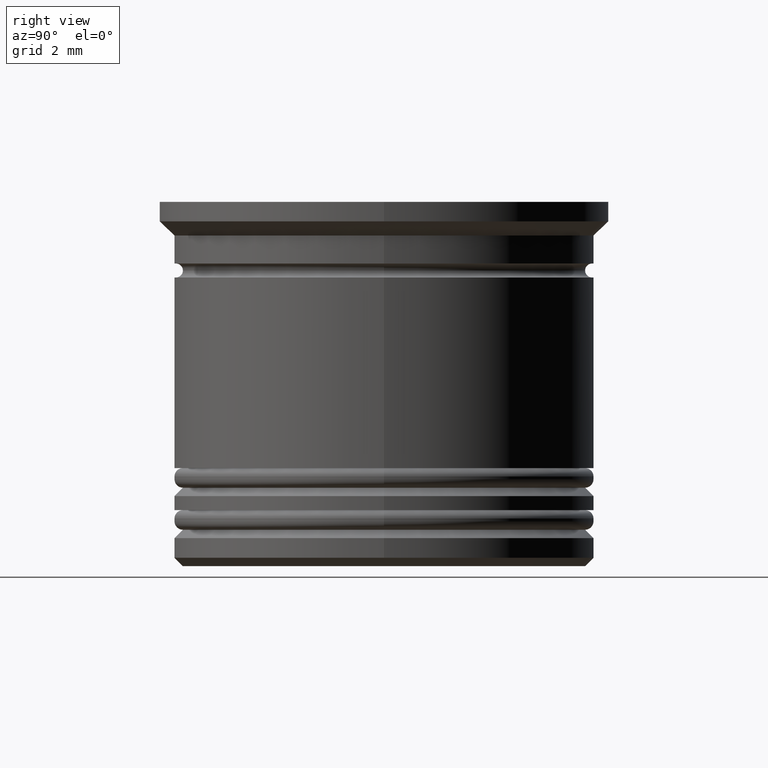
[diagram: clean part render]
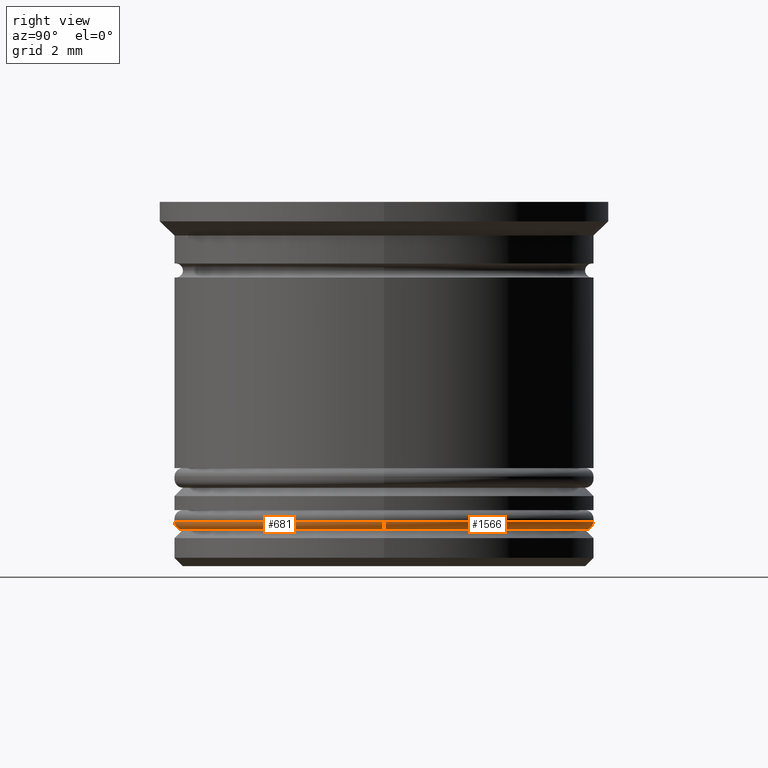
[diagram: same view with one multi-face feature highlighted, each face labeled with its STEP entity id]
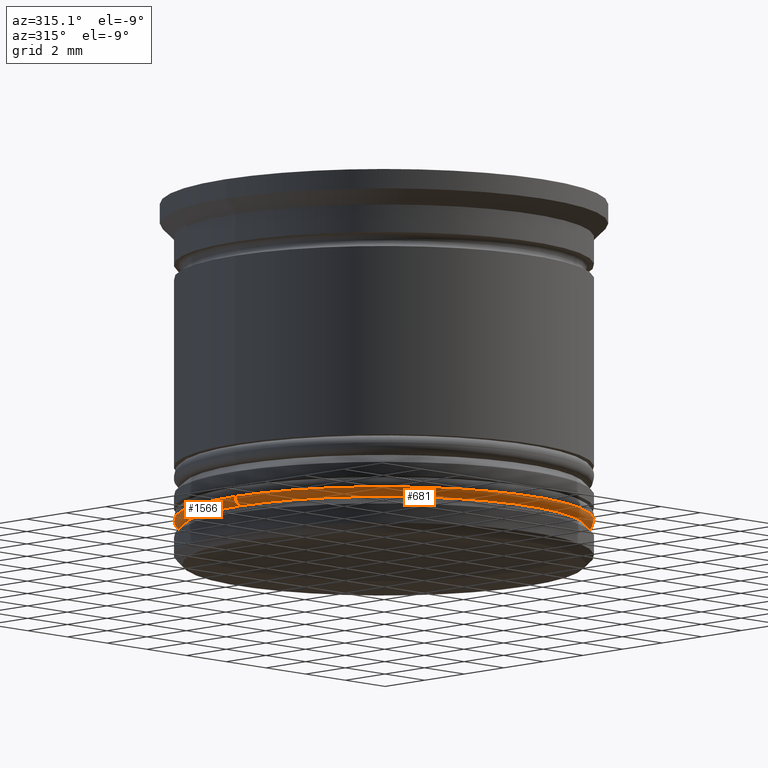
[diagram: same view with one multi-face feature highlighted, each face labeled with its STEP entity id]
A machine part, right view. The highlighted faces form ONE feature: a constant-radius fillet chain: 2 tangent blend faces with common blend radius 0.3 mm. The faces share edges in the B-rep.
A second angle (auxiliary view) of the same feature is appended — it is thin or edge-on in the first view.
Their STEP definitions:
[1] entity #1566 (Torus):
#1 = DIRECTION ( 'NONE',  ( 1.224646799147353207E-16, 1.000000000000000000, -0.000000000000000000 ) ) ;
#10 = DIRECTION ( 'NONE',  ( 0.000000000000000000, 0.000000000000000000, 1.000000000000000000 ) ) ;
#50 = CARTESIAN_POINT ( 'NONE',  ( 7.200000000000001954, 0.000000000000000000, -11.40000000000000391 ) ) ;
#99 = AXIS2_PLACEMENT_3D ( 'NONE', #263, #1966, #1518 ) ;
#146 = CIRCLE ( 'NONE', #859, 7.500000000000001776 ) ;
#147 = FACE_OUTER_BOUND ( 'NONE', #1721, .T. ) ;
#193 = CARTESIAN_POINT ( 'NONE',  ( 7.500000000000001776, 0.000000000000000000, -11.40000000000000391 ) ) ;
#219 = TOROIDAL_SURFACE ( 'NONE', #1536, 7.200000000000001954, 0.2999999999999999889 ) ;
#241 = ORIENTED_EDGE ( 'NONE', *, *, #1321, .F. ) ;
#262 = VERTEX_POINT ( 'NONE', #1110 ) ;
#263 = CARTESIAN_POINT ( 'NONE',  ( 0.000000000000000000, 0.000000000000000000, -11.70000000000000462 ) ) ;
#297 = CARTESIAN_POINT ( 'NONE',  ( 0.000000000000000000, 0.000000000000000000, -11.40000000000000391 ) ) ;
#322 = CARTESIAN_POINT ( 'NONE',  ( -7.200000000000001954, 8.817456953860946247E-16, -11.40000000000000391 ) ) ;
#566 = VERTEX_POINT ( 'NONE', #1264 ) ;
#601 = EDGE_CURVE ( 'NONE', #1976, #262, #146, .T. ) ;
#627 = DIRECTION ( 'NONE',  ( 1.000000000000000000, 0.000000000000000000, 0.000000000000000000 ) ) ;
#666 = DIRECTION ( 'NONE',  ( 0.000000000000000000, -1.000000000000000000, 0.000000000000000000 ) ) ;
#710 = CARTESIAN_POINT ( 'NONE',  ( 0.000000000000000000, 0.000000000000000000, -11.40000000000000391 ) ) ;
#720 = ORIENTED_EDGE ( 'NONE', *, *, #1866, .T. ) ;
#847 = DIRECTION ( 'NONE',  ( 0.000000000000000000, 0.000000000000000000, 1.000000000000000000 ) ) ;
#859 = AXIS2_PLACEMENT_3D ( 'NONE', #297, #10, #627 ) ;
#921 = CIRCLE ( 'NONE', #99, 7.200000000000001954 ) ;
#977 = EDGE_CURVE ( 'NONE', #1258, #1976, #1207, .T. ) ;
#1110 = CARTESIAN_POINT ( 'NONE',  ( -7.500000000000001776, 9.184850993605149917E-16, -11.40000000000000391 ) ) ;
#1207 = CIRCLE ( 'NONE', #1828, 0.2999999999999999334 ) ;
#1258 = VERTEX_POINT ( 'NONE', #1294 ) ;
#1264 = CARTESIAN_POINT ( 'NONE',  ( -7.200000000000001954, 9.001153973733047589E-16, -11.70000000000000462 ) ) ;
#1265 = DIRECTION ( 'NONE',  ( 0.000000000000000000, 0.000000000000000000, -1.000000000000000000 ) ) ;
#1294 = CARTESIAN_POINT ( 'NONE',  ( 7.200000000000001954, 0.000000000000000000, -11.70000000000000462 ) ) ;
#1321 = EDGE_CURVE ( 'NONE', #566, #1258, #921, .T. ) ;
#1479 = CIRCLE ( 'NONE', #1505, 0.2999999999999999334 ) ;
#1505 = AXIS2_PLACEMENT_3D ( 'NONE', #322, #1, #1843 ) ;
#1518 = DIRECTION ( 'NONE',  ( 1.000000000000000000, 0.000000000000000000, 0.000000000000000000 ) ) ;
#1536 = AXIS2_PLACEMENT_3D ( 'NONE', #710, #847, #1617 ) ;
#1566 = ADVANCED_FACE ( 'NONE', ( #147 ), #219, .T. ) ;
#1617 = DIRECTION ( 'NONE',  ( 1.000000000000000000, 0.000000000000000000, 0.000000000000000000 ) ) ;
#1707 = ORIENTED_EDGE ( 'NONE', *, *, #977, .F. ) ;
#1721 = EDGE_LOOP ( 'NONE', ( #241, #720, #1771, #1707 ) ) ;
#1771 = ORIENTED_EDGE ( 'NONE', *, *, #601, .F. ) ;
#1828 = AXIS2_PLACEMENT_3D ( 'NONE', #50, #666, #1265 ) ;
#1843 = DIRECTION ( 'NONE',  ( -1.000000000000000000, 1.224646799147353207E-16, 0.000000000000000000 ) ) ;
#1866 = EDGE_CURVE ( 'NONE', #566, #262, #1479, .T. ) ;
#1966 = DIRECTION ( 'NONE',  ( -0.000000000000000000, -0.000000000000000000, -1.000000000000000000 ) ) ;
#1976 = VERTEX_POINT ( 'NONE', #193 ) ;
[2] entity #681 (Torus):
#1 = DIRECTION ( 'NONE',  ( 1.224646799147353207E-16, 1.000000000000000000, -0.000000000000000000 ) ) ;
#36 = FACE_OUTER_BOUND ( 'NONE', #598, .T. ) ;
#50 = CARTESIAN_POINT ( 'NONE',  ( 7.200000000000001954, 0.000000000000000000, -11.40000000000000391 ) ) ;
#110 = CARTESIAN_POINT ( 'NONE',  ( 0.000000000000000000, 0.000000000000000000, -11.70000000000000462 ) ) ;
#193 = CARTESIAN_POINT ( 'NONE',  ( 7.500000000000001776, 0.000000000000000000, -11.40000000000000391 ) ) ;
#236 = ORIENTED_EDGE ( 'NONE', *, *, #1866, .F. ) ;
#262 = VERTEX_POINT ( 'NONE', #1110 ) ;
#308 = CIRCLE ( 'NONE', #1187, 7.200000000000001954 ) ;
#322 = CARTESIAN_POINT ( 'NONE',  ( -7.200000000000001954, 8.817456953860946247E-16, -11.40000000000000391 ) ) ;
#356 = ORIENTED_EDGE ( 'NONE', *, *, #1758, .F. ) ;
#457 = CARTESIAN_POINT ( 'NONE',  ( 0.000000000000000000, 0.000000000000000000, -11.40000000000000391 ) ) ;
#499 = DIRECTION ( 'NONE',  ( 0.000000000000000000, 0.000000000000000000, 1.000000000000000000 ) ) ;
#510 = CIRCLE ( 'NONE', #717, 7.500000000000001776 ) ;
#566 = VERTEX_POINT ( 'NONE', #1264 ) ;
#598 = EDGE_LOOP ( 'NONE', ( #236, #356, #807, #1854 ) ) ;
#666 = DIRECTION ( 'NONE',  ( 0.000000000000000000, -1.000000000000000000, 0.000000000000000000 ) ) ;
#681 = ADVANCED_FACE ( 'NONE', ( #36 ), #885, .T. ) ;
#717 = AXIS2_PLACEMENT_3D ( 'NONE', #970, #499, #1112 ) ;
#807 = ORIENTED_EDGE ( 'NONE', *, *, #977, .T. ) ;
#885 = TOROIDAL_SURFACE ( 'NONE', #1570, 7.200000000000001954, 0.2999999999999999889 ) ;
#970 = CARTESIAN_POINT ( 'NONE',  ( 0.000000000000000000, 0.000000000000000000, -11.40000000000000391 ) ) ;
#977 = EDGE_CURVE ( 'NONE', #1258, #1976, #1207, .T. ) ;
#999 = EDGE_CURVE ( 'NONE', #262, #1976, #510, .T. ) ;
#1027 = DIRECTION ( 'NONE',  ( 1.000000000000000000, 0.000000000000000000, 0.000000000000000000 ) ) ;
#1066 = DIRECTION ( 'NONE',  ( 0.000000000000000000, 0.000000000000000000, 1.000000000000000000 ) ) ;
#1110 = CARTESIAN_POINT ( 'NONE',  ( -7.500000000000001776, 9.184850993605149917E-16, -11.40000000000000391 ) ) ;
#1112 = DIRECTION ( 'NONE',  ( 1.000000000000000000, 0.000000000000000000, 0.000000000000000000 ) ) ;
#1167 = DIRECTION ( 'NONE',  ( -0.000000000000000000, -0.000000000000000000, -1.000000000000000000 ) ) ;
#1187 = AXIS2_PLACEMENT_3D ( 'NONE', #110, #1167, #1027 ) ;
#1207 = CIRCLE ( 'NONE', #1828, 0.2999999999999999334 ) ;
#1258 = VERTEX_POINT ( 'NONE', #1294 ) ;
#1264 = CARTESIAN_POINT ( 'NONE',  ( -7.200000000000001954, 9.001153973733047589E-16, -11.70000000000000462 ) ) ;
#1265 = DIRECTION ( 'NONE',  ( 0.000000000000000000, 0.000000000000000000, -1.000000000000000000 ) ) ;
#1294 = CARTESIAN_POINT ( 'NONE',  ( 7.200000000000001954, 0.000000000000000000, -11.70000000000000462 ) ) ;
#1479 = CIRCLE ( 'NONE', #1505, 0.2999999999999999334 ) ;
#1505 = AXIS2_PLACEMENT_3D ( 'NONE', #322, #1, #1843 ) ;
#1570 = AXIS2_PLACEMENT_3D ( 'NONE', #457, #1066, #1685 ) ;
#1685 = DIRECTION ( 'NONE',  ( 1.000000000000000000, 0.000000000000000000, 0.000000000000000000 ) ) ;
#1758 = EDGE_CURVE ( 'NONE', #1258, #566, #308, .T. ) ;
#1828 = AXIS2_PLACEMENT_3D ( 'NONE', #50, #666, #1265 ) ;
#1843 = DIRECTION ( 'NONE',  ( -1.000000000000000000, 1.224646799147353207E-16, 0.000000000000000000 ) ) ;
#1854 = ORIENTED_EDGE ( 'NONE', *, *, #999, .F. ) ;
#1866 = EDGE_CURVE ( 'NONE', #566, #262, #1479, .T. ) ;
#1976 = VERTEX_POINT ( 'NONE', #193 ) ;